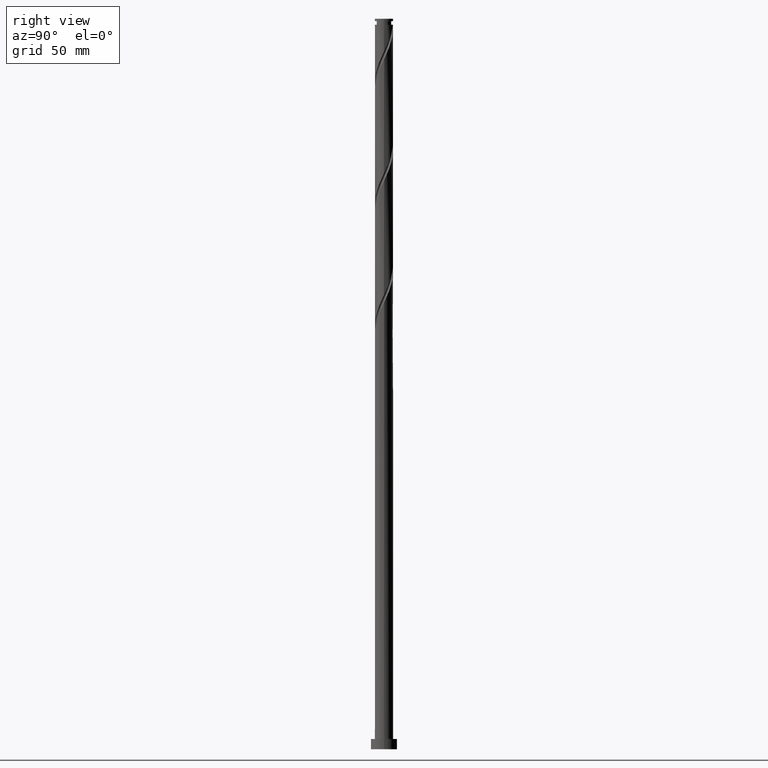
[diagram: clean part render]
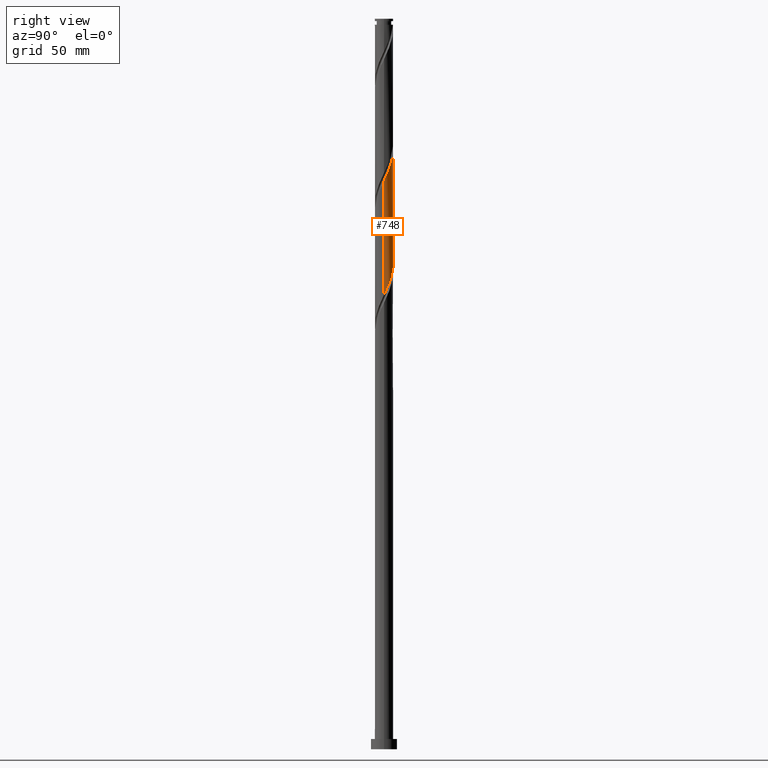
[diagram: same view with one face highlighted and labeled with its STEP entity id]
A machine part, right view. The second image highlights one B-rep face of the part: STEP entity #748.
In plain terms, the highlighted cylindrical surface (edge-blend (fillet) strip) has radius 6.25 mm, axis along (-0, -0, -1).
Its self-contained STEP definition (entity closure, byte-faithful):
#29 = CARTESIAN_POINT ( 'NONE',  ( -4.838775481857032545, 4.003458483091587361, 343.5262738938304210 ) ) ;
#40 = CARTESIAN_POINT ( 'NONE',  ( 6.017033694790346665, 1.799092411583232076, 314.8804405604971066 ) ) ;
#58 = DIRECTION ( 'NONE',  ( -0.000000000000000000, -0.000000000000000000, -1.000000000000000000 ) ) ;
#88 = EDGE_CURVE ( 'NONE', #2064, #719, #1044, .T. ) ;
#112 = CARTESIAN_POINT ( 'NONE',  ( 4.838775481857040539, 4.003458483091592690, 398.2137738938304210 ) ) ;
#122 = CARTESIAN_POINT ( 'NONE',  ( 5.764669318085877237, 2.414764512974176824, 394.3075238938303642 ) ) ;
#142 = CARTESIAN_POINT ( 'NONE',  ( 6.247497136254232863, 0.6404744508206492437, 390.4012738938304210 ) ) ;
#160 = CARTESIAN_POINT ( 'NONE',  ( -6.250000000000000888, 0.01245408358914464053, 352.6672006506432808 ) ) ;
#224 = CARTESIAN_POINT ( 'NONE',  ( 6.250000000000001776, 6.297881374636269097E-15, 311.0268875384938951 ) ) ;
#248 = ORIENTED_EDGE ( 'NONE', *, *, #1632, .F. ) ;
#254 = FACE_OUTER_BOUND ( 'NONE', #710, .T. ) ;
#273 = CARTESIAN_POINT ( 'NONE',  ( 4.401769622496969347, 4.436994950466251808, 399.5158572271636785 ) ) ;
#292 = CARTESIAN_POINT ( 'NONE',  ( 6.002502863745784900, 1.846994141945908829, 393.0054405604971635 ) ) ;
#301 = CARTESIAN_POINT ( 'NONE',  ( 0.5906583142674440845, 6.252403597453189299, 408.6304405604971066 ) ) ;
#309 = CARTESIAN_POINT ( 'NONE',  ( -6.250000000000009770, 7.460911258558398260E-15, 430.7131602491668900 ) ) ;
#315 = VECTOR ( 'NONE', #942, 1000.000000000000000 ) ;
#318 = CARTESIAN_POINT ( 'NONE',  ( -5.764669318085871019, 2.414764512974175492, 347.4325238938304210 ) ) ;
#345 = CARTESIAN_POINT ( 'NONE',  ( -6.250000000000000888, 2.911115986695585787E-14, 352.6935542051605239 ) ) ;
#357 = CARTESIAN_POINT ( 'NONE',  ( 6.250000000000001776, 0.6029988433061195252, 312.3028676439098490 ) ) ;
#380 = CARTESIAN_POINT ( 'NONE',  ( -1.799092411583232298, 6.017033694790346665, 335.7137738938303642 ) ) ;
#399 = DIRECTION ( 'NONE',  ( -1.000000000000000000, 0.000000000000000000, 0.000000000000000000 ) ) ;
#440 = CARTESIAN_POINT ( 'NONE',  ( -6.250000000000009770, 7.460911258558398260E-15, 430.7131602491668900 ) ) ;
#450 = CARTESIAN_POINT ( 'NONE',  ( 3.964763763136894603, 4.870531417840916255, 400.8179405604971635 ) ) ;
#465 = VERTEX_POINT ( 'NONE', #1397 ) ;
#479 = CARTESIAN_POINT ( 'NONE',  ( 1.243734296383280702, 6.125000000000000000, 329.2033572271636785 ) ) ;
#493 =( BOUNDED_CURVE ( )  B_SPLINE_CURVE ( 2, ( #1696, #902, #1756, #142, #1920, #292, #122, #1583, #784, #112, #273, #450, #1908, #796, #2077, #1941, #919, #301, #639, #620, #607, #774, #1103, #1443, #806, #1614, #1747, #1123, #1407, #1573, #1931, #1592, #1418, #964, #440 ),
 .UNSPECIFIED., .F., .T. ) 
 B_SPLINE_CURVE_WITH_KNOTS ( ( 3, 2, 2, 2, 2, 2, 2, 2, 2, 2, 2, 2, 2, 2, 2, 2, 2, 3 ),
 ( 0.4295286902180874278, 0.4296875000000000000, 0.4375000000000000000, 0.4453125000000000000, 0.4531250000000000000, 0.4609375000000000000, 0.4687500000000000000, 0.4765625000000000000, 0.4843750000000000000, 0.4921875000000000000, 0.5000000000000000000, 0.5078125000000000000, 0.5156250000000000000, 0.5234375000000000000, 0.5312500000000000000, 0.5390625000000000000, 0.5468750000000000000, 0.5545286902180872612 ),
 .UNSPECIFIED. ) 
 CURVE ( )  GEOMETRIC_REPRESENTATION_ITEM ( )  RATIONAL_B_SPLINE_CURVE ( ( 0.9089165573359504480, 0.9090019243628550960, 0.9090909090909468082, 0.9047133878838528043, 0.9090909090909468082, 0.9047133878838528043, 0.9090909090909468082, 0.9047133878838528043, 0.9090909090909468082, 0.9047133878838528043, 0.9090909090909468082, 0.9047133878838528043, 0.9090909090909468082, 0.9047133878838528043, 0.9090909090909468082, 0.9047133878838528043, 0.9090909090909468082, 0.9047133878838528043, 0.9090909090909468082, 0.9047133878838528043, 0.9090909090909468082, 0.9047133878838528043, 0.9090909090909468082, 0.9047133878838528043, 0.9090909090909468082, 0.9047133878838528043, 0.9090909090909468082, 0.9047133878838528043, 0.9090909090909468082, 0.9047133878838528043, 0.9090909090909468082, 0.9047133878838528043, 0.9090909090909468082, 0.9048023726119445165, 0.9089165573359503369 ) ) 
 REPRESENTATION_ITEM ( '' )  );
#517 = CARTESIAN_POINT ( 'NONE',  ( 2.982534884002440378, 5.526835772425963356, 325.2971072271637922 ) ) ;
#527 = CARTESIAN_POINT ( 'NONE',  ( -3.964763763136888386, 4.870531417840910038, 340.9221072271636785 ) ) ;
#537 = CARTESIAN_POINT ( 'NONE',  ( -2.938388396464528540, 5.550432561628093175, 338.3179405604971066 ) ) ;
#557 = CYLINDRICAL_SURFACE ( 'NONE', #724, 6.250000000000000000 ) ;
#607 = CARTESIAN_POINT ( 'NONE',  ( -1.243734296383278481, 6.125000000000008882, 412.5366905604971066 ) ) ;
#620 = CARTESIAN_POINT ( 'NONE',  ( -0.6404744508206486886, 6.247497136254232863, 411.2346072271637922 ) ) ;
#639 = CARTESIAN_POINT ( 'NONE',  ( -0.02490806827659946751, 6.249950366853710193, 409.9325238938304210 ) ) ;
#672 = CARTESIAN_POINT ( 'NONE',  ( 0.6404744508206482445, 6.247497136254223982, 330.5054405604971066 ) ) ;
#710 = EDGE_LOOP ( 'NONE', ( #972, #1493, #248, #782 ) ) ;
#719 = VERTEX_POINT ( 'NONE', #345 ) ;
#724 = AXIS2_PLACEMENT_3D ( 'NONE', #1389, #58, #399 ) ;
#748 = ADVANCED_FACE ( 'NONE', ( #254 ), #557, .T. ) ;
#774 = CARTESIAN_POINT ( 'NONE',  ( -1.846994141945911938, 6.002502863745784900, 413.8387738938303642 ) ) ;
#782 = ORIENTED_EDGE ( 'NONE', *, *, #88, .F. ) ;
#783 = CARTESIAN_POINT ( 'NONE',  ( 6.250000000000000000, 7.654042494670957606E-16, 500.0000000000000000 ) ) ;
#784 = CARTESIAN_POINT ( 'NONE',  ( 5.182805627141504168, 3.492996683547017867, 396.9116905604970498 ) ) ;
#796 = CARTESIAN_POINT ( 'NONE',  ( 2.938388396464535646, 5.550432561628096728, 403.4221072271638491 ) ) ;
#806 = CARTESIAN_POINT ( 'NONE',  ( -3.492996683547016534, 5.182805627141505056, 417.7450238938303642 ) ) ;
#813 = CARTESIAN_POINT ( 'NONE',  ( -5.526835772425965132, 2.982534884002439046, 346.1304405604971066 ) ) ;
#842 = EDGE_CURVE ( 'NONE', #465, #2064, #493, .T. ) ;
#902 = CARTESIAN_POINT ( 'NONE',  ( 6.250000000000007105, 0.01245408358914516789, 389.0728471370175043 ) ) ;
#919 = CARTESIAN_POINT ( 'NONE',  ( 1.194875362925343909, 6.134718646121773311, 407.3283572271637354 ) ) ;
#942 = DIRECTION ( 'NONE',  ( -0.000000000000000000, -0.000000000000000000, -1.000000000000000000 ) ) ;
#964 = CARTESIAN_POINT ( 'NONE',  ( -6.250000000000012434, 0.6029988433061316266, 429.4371801437508793 ) ) ;
#971 = CARTESIAN_POINT ( 'NONE',  ( 3.492996683547016534, 5.182805627141495286, 323.9950238938304210 ) ) ;
#972 = ORIENTED_EDGE ( 'NONE', *, *, #842, .F. ) ;
#1009 = CARTESIAN_POINT ( 'NONE',  ( -4.401769622496961354, 4.436994950466248255, 342.2241905604969929 ) ) ;
#1020 = CARTESIAN_POINT ( 'NONE',  ( 0.02490806827660350942, 6.249950366853703088, 331.8075238938303073 ) ) ;
#1031 = CARTESIAN_POINT ( 'NONE',  ( 5.783733128209219920, 2.368740404023877311, 316.1825238938303642 ) ) ;
#1044 = LINE ( 'NONE', #1902, #1911 ) ;
#1103 = CARTESIAN_POINT ( 'NONE',  ( -2.414764512974176824, 5.764669318085877237, 415.1408572271637354 ) ) ;
#1123 = CARTESIAN_POINT ( 'NONE',  ( -4.870531417840916255, 3.964763763136895491, 421.6512738938304210 ) ) ;
#1132 = CARTESIAN_POINT ( 'NONE',  ( 4.870531417840912702, 3.964763763136884833, 320.0887738938304778 ) ) ;
#1168 = CARTESIAN_POINT ( 'NONE',  ( -5.182805627141497062, 3.492996683547012982, 344.8283572271638491 ) ) ;
#1178 = CARTESIAN_POINT ( 'NONE',  ( -6.249950366853703088, 0.02490806827660372799, 352.6408572271637354 ) ) ;
#1256 = LINE ( 'NONE', #783, #315 ) ;
#1268 = VERTEX_POINT ( 'NONE', #1343 ) ;
#1288 = CARTESIAN_POINT ( 'NONE',  ( -2.368740404023879975, 5.783733128209219032, 337.0158572271637922 ) ) ;
#1326 = CARTESIAN_POINT ( 'NONE',  ( -6.002502863745775130, 1.846994141945911272, 348.7346072271638491 ) ) ;
#1343 = CARTESIAN_POINT ( 'NONE',  ( 6.250000000000001776, 6.297881374636269097E-15, 311.0268875384938951 ) ) ;
#1351 = CARTESIAN_POINT ( 'NONE',  ( 4.003458483091588249, 4.838775481857031657, 322.6929405604971066 ) ) ;
#1389 = CARTESIAN_POINT ( 'NONE',  ( 0.000000000000000000, 0.000000000000000000, 500.0000000000000000 ) ) ;
#1397 = CARTESIAN_POINT ( 'NONE',  ( 6.250000000000008882, 7.878409165607379030E-15, 389.0464935825002044 ) ) ;
#1407 = CARTESIAN_POINT ( 'NONE',  ( -5.210481989734504715, 3.451576079800712904, 422.9533572271636785 ) ) ;
#1418 = CARTESIAN_POINT ( 'NONE',  ( -6.134718646121773311, 1.194875362925339690, 428.1616905604970498 ) ) ;
#1443 = CARTESIAN_POINT ( 'NONE',  ( -2.982534884002442155, 5.526835772425972237, 416.4429405604971635 ) ) ;
#1491 = CARTESIAN_POINT ( 'NONE',  ( -6.125000000000000000, 1.243734296383279592, 350.0366905604969929 ) ) ;
#1493 = ORIENTED_EDGE ( 'NONE', *, *, #1970, .T. ) ;
#1502 = CARTESIAN_POINT ( 'NONE',  ( -0.5906583142674413089, 6.252403597453181305, 333.1096072271637922 ) ) ;
#1514 = CARTESIAN_POINT ( 'NONE',  ( 1.846994141945910162, 6.002502863745776018, 327.9012738938303642 ) ) ;
#1561 = DIRECTION ( 'NONE',  ( -0.000000000000000000, -0.000000000000000000, -1.000000000000000000 ) ) ;
#1573 = CARTESIAN_POINT ( 'NONE',  ( -5.550432561628097616, 2.938388396464533425, 424.2554405604970498 ) ) ;
#1583 = CARTESIAN_POINT ( 'NONE',  ( 5.526835772425973126, 2.982534884002440823, 395.6096072271637922 ) ) ;
#1592 = CARTESIAN_POINT ( 'NONE',  ( -6.017033694790354659, 1.799092411583237183, 426.8596072271637922 ) ) ;
#1614 = CARTESIAN_POINT ( 'NONE',  ( -4.003458483091592690, 4.838775481857040539, 419.0471072271637922 ) ) ;
#1632 = EDGE_CURVE ( 'NONE', #719, #1268, #1664, .T. ) ;
#1657 = CARTESIAN_POINT ( 'NONE',  ( 5.210481989734500274, 3.451576079800706687, 318.7866905604970498 ) ) ;
#1664 =( BOUNDED_CURVE ( )  B_SPLINE_CURVE ( 2, ( #2012, #160, #1178, #1774, #1491, #1326, #318, #813, #1168, #29, #1009, #527, #1838, #537, #1288, #380, #2002, #1502, #1020, #672, #479, #1514, #1978, #517, #971, #1351, #1937, #1132, #1657, #1815, #1031, #40, #1679, #357, #224 ),
 .UNSPECIFIED., .F., .T. ) 
 B_SPLINE_CURVE_WITH_KNOTS ( ( 3, 2, 2, 2, 2, 2, 2, 2, 2, 2, 2, 2, 2, 2, 2, 2, 2, 3 ),
 ( 0.6795286902180873723, 0.6796875000000000000, 0.6875000000000000000, 0.6953125000000000000, 0.7031250000000000000, 0.7109375000000000000, 0.7187500000000000000, 0.7265625000000000000, 0.7343750000000000000, 0.7421875000000000000, 0.7500000000000000000, 0.7578125000000000000, 0.7656250000000000000, 0.7734375000000000000, 0.7812500000000000000, 0.7890625000000000000, 0.7968750000000000000, 0.8045286902180873723 ),
 .UNSPECIFIED. ) 
 CURVE ( )  GEOMETRIC_REPRESENTATION_ITEM ( )  RATIONAL_B_SPLINE_CURVE ( ( 0.9089165573359445638, 0.9090019243628492118, 0.9090909090909409240, 0.9047133878838470311, 0.9090909090909409240, 0.9047133878838470311, 0.9090909090909409240, 0.9047133878838470311, 0.9090909090909409240, 0.9047133878838470311, 0.9090909090909409240, 0.9047133878838470311, 0.9090909090909409240, 0.9047133878838470311, 0.9090909090909409240, 0.9047133878838470311, 0.9090909090909409240, 0.9047133878838470311, 0.9090909090909409240, 0.9047133878838470311, 0.9090909090909409240, 0.9047133878838470311, 0.9090909090909409240, 0.9047133878838470311, 0.9090909090909409240, 0.9047133878838470311, 0.9090909090909409240, 0.9047133878838470311, 0.9090909090909409240, 0.9047133878838470311, 0.9090909090909409240, 0.9047133878838470311, 0.9090909090909409240, 0.9048023726119387433, 0.9089165573359445638 ) ) 
 REPRESENTATION_ITEM ( '' )  );
#1679 = CARTESIAN_POINT ( 'NONE',  ( 6.134718646121763541, 1.194875362925338358, 313.5783572271636785 ) ) ;
#1696 = CARTESIAN_POINT ( 'NONE',  ( 6.250000000000008882, 7.878409165607379030E-15, 389.0464935825002044 ) ) ;
#1747 = CARTESIAN_POINT ( 'NONE',  ( -4.436994950466251808, 4.401769622496965795, 420.3491905604970498 ) ) ;
#1756 = CARTESIAN_POINT ( 'NONE',  ( 6.249950366853710193, 0.02490806827659989078, 389.0991905604970498 ) ) ;
#1774 = CARTESIAN_POINT ( 'NONE',  ( -6.247497136254223982, 0.6404744508206479114, 351.3387738938305347 ) ) ;
#1815 = CARTESIAN_POINT ( 'NONE',  ( 5.550432561628091399, 2.938388396464528540, 317.4846072271638491 ) ) ;
#1838 = CARTESIAN_POINT ( 'NONE',  ( -3.451576079800708019, 5.210481989734499386, 339.6200238938303642 ) ) ;
#1902 = CARTESIAN_POINT ( 'NONE',  ( -6.250000000000000000, 0.000000000000000000, 500.0000000000000000 ) ) ;
#1908 = CARTESIAN_POINT ( 'NONE',  ( 3.451576079800713792, 5.210481989734502939, 402.1200238938303642 ) ) ;
#1911 = VECTOR ( 'NONE', #1561, 1000.000000000000000 ) ;
#1920 = CARTESIAN_POINT ( 'NONE',  ( 6.125000000000008882, 1.243734296383278704, 391.7033572271636785 ) ) ;
#1931 = CARTESIAN_POINT ( 'NONE',  ( -5.783733128209226138, 2.368740404023883528, 425.5575238938303642 ) ) ;
#1937 = CARTESIAN_POINT ( 'NONE',  ( 4.436994950466247367, 4.401769622496961354, 321.3908572271637354 ) ) ;
#1941 = CARTESIAN_POINT ( 'NONE',  ( 1.799092411583237405, 6.017033694790354659, 406.0262738938304210 ) ) ;
#1970 = EDGE_CURVE ( 'NONE', #465, #1268, #1256, .T. ) ;
#1978 = CARTESIAN_POINT ( 'NONE',  ( 2.414764512974177268, 5.764669318085869243, 326.5991905604971066 ) ) ;
#2002 = CARTESIAN_POINT ( 'NONE',  ( -1.194875362925336582, 6.134718646121764429, 334.4116905604969929 ) ) ;
#2012 = CARTESIAN_POINT ( 'NONE',  ( -6.250000000000001776, 2.911115986695585787E-14, 352.6935542051605239 ) ) ;
#2064 = VERTEX_POINT ( 'NONE', #309 ) ;
#2077 = CARTESIAN_POINT ( 'NONE',  ( 2.368740404023883084, 5.783733128209226138, 404.7241905604969929 ) ) ;